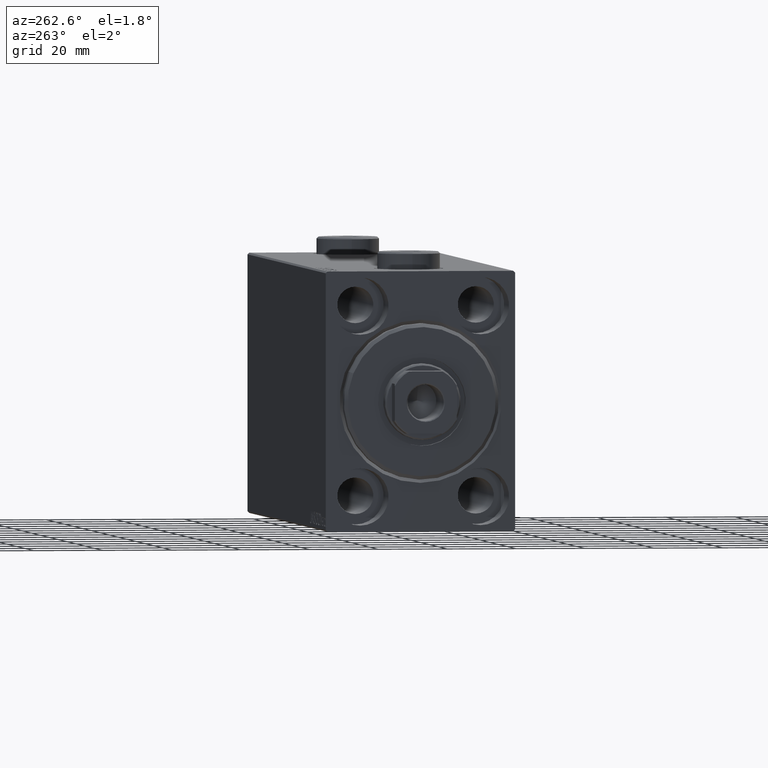
[diagram: clean part render]
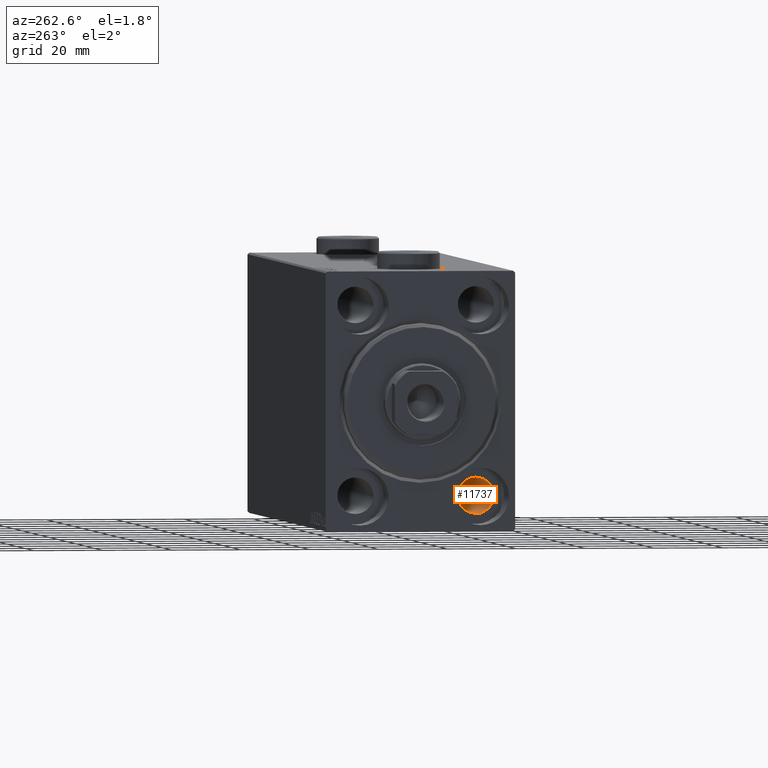
[diagram: same view with one face highlighted and labeled with its STEP entity id]
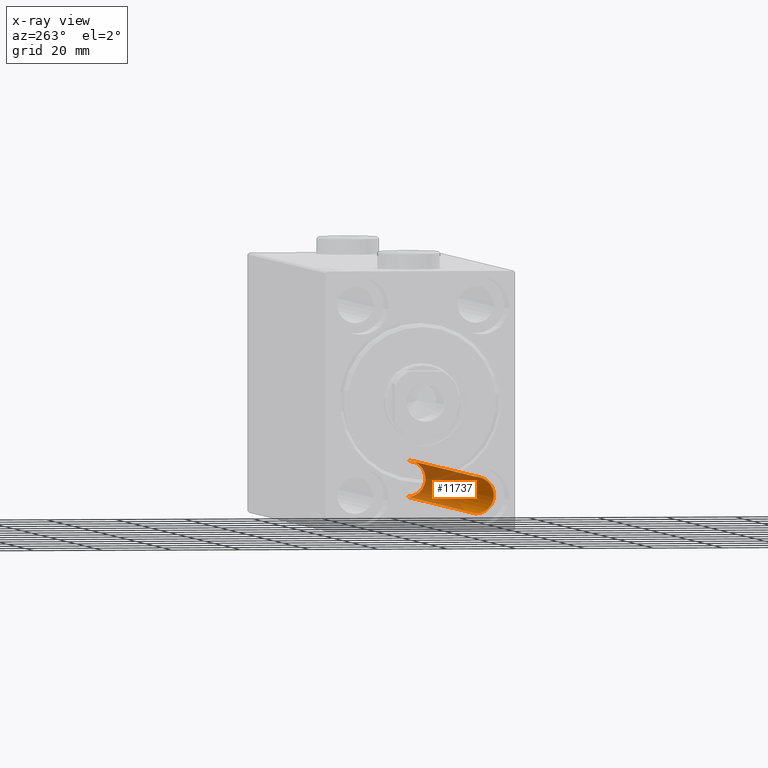
[diagram: x-ray of the same camera — body ghosted, the highlighted face saturated]
A machine part, auxiliary view. The second image highlights one B-rep face of the part: STEP entity #11737.
The next image is the same camera in x-ray: the body ghosted, the highlighted face saturated — about 59% of this face is hidden behind the body in this view.
In plain terms, the highlighted cylindrical surface (edge-blend (fillet) strip) has radius 5.25 mm, axis along (-1, -0, -0).
Its self-contained STEP definition (entity closure, byte-faithful):
#189 = ORIENTED_EDGE ( 'NONE', *, *, #37346, .F. ) ;
#518 = FACE_OUTER_BOUND ( 'NONE', #42583, .T. ) ;
#2521 = ORIENTED_EDGE ( 'NONE', *, *, #22757, .T. ) ;
#3391 = ORIENTED_EDGE ( 'NONE', *, *, #19325, .T. ) ;
#3734 = DIRECTION ( 'NONE',  ( -1.000000000000000000, -0.000000000000000000, -0.000000000000000000 ) ) ;
#5492 = CARTESIAN_POINT ( 'NONE',  ( 163.9999999999999716, -17.50000000000000355, -32.75000000000000000 ) ) ;
#8063 = CYLINDRICAL_SURFACE ( 'NONE', #42332, 5.250000000000000888 ) ;
#8445 = CARTESIAN_POINT ( 'NONE',  ( 163.9999999999999716, -17.50000000000000355, -27.50000000000000355 ) ) ;
#8541 = CARTESIAN_POINT ( 'NONE',  ( 175.0000000000000000, -17.50000000000000355, -22.25000000000000355 ) ) ;
#9661 = VERTEX_POINT ( 'NONE', #42334 ) ;
#10411 = CIRCLE ( 'NONE', #35939, 5.249999999999997335 ) ;
#11492 = LINE ( 'NONE', #38907, #20626 ) ;
#11737 = ADVANCED_FACE ( 'NONE', ( #518 ), #8063, .F. ) ;
#11756 = LINE ( 'NONE', #8541, #29172 ) ;
#13421 = AXIS2_PLACEMENT_3D ( 'NONE', #40342, #20010, #34380 ) ;
#17069 = CIRCLE ( 'NONE', #13421, 5.250000000000000888 ) ;
#18822 = DIRECTION ( 'NONE',  ( 0.000000000000000000, 0.000000000000000000, 1.000000000000000000 ) ) ;
#19203 = DIRECTION ( 'NONE',  ( 0.000000000000000000, 0.000000000000000000, -1.000000000000000000 ) ) ;
#19325 = EDGE_CURVE ( 'NONE', #37310, #9661, #11492, .T. ) ;
#20010 = DIRECTION ( 'NONE',  ( -1.000000000000000000, 0.000000000000000000, 0.000000000000000000 ) ) ;
#20626 = VECTOR ( 'NONE', #3734, 1000.000000000000000 ) ;
#21573 = DIRECTION ( 'NONE',  ( -1.000000000000000000, -0.000000000000000000, -0.000000000000000000 ) ) ;
#21934 = ORIENTED_EDGE ( 'NONE', *, *, #24786, .F. ) ;
#22248 = DIRECTION ( 'NONE',  ( -1.000000000000000000, -0.000000000000000000, -0.000000000000000000 ) ) ;
#22757 = EDGE_CURVE ( 'NONE', #9661, #41228, #17069, .T. ) ;
#24786 = EDGE_CURVE ( 'NONE', #44045, #41228, #11756, .T. ) ;
#25643 = CARTESIAN_POINT ( 'NONE',  ( 11.00000000000001066, -17.50000000000000355, -22.25000000000000355 ) ) ;
#26047 = DIRECTION ( 'NONE',  ( -1.000000000000000000, -0.000000000000000000, -0.000000000000000000 ) ) ;
#26834 = CARTESIAN_POINT ( 'NONE',  ( 163.9999999999999716, -17.50000000000000355, -22.25000000000000355 ) ) ;
#29172 = VECTOR ( 'NONE', #21573, 1000.000000000000000 ) ;
#34380 = DIRECTION ( 'NONE',  ( 0.000000000000000000, 0.000000000000000000, 1.000000000000000000 ) ) ;
#35939 = AXIS2_PLACEMENT_3D ( 'NONE', #8445, #26047, #19203 ) ;
#36178 = CARTESIAN_POINT ( 'NONE',  ( 175.0000000000000000, -17.50000000000000355, -27.50000000000000355 ) ) ;
#37310 = VERTEX_POINT ( 'NONE', #5492 ) ;
#37346 = EDGE_CURVE ( 'NONE', #37310, #44045, #10411, .T. ) ;
#38907 = CARTESIAN_POINT ( 'NONE',  ( 175.0000000000000000, -17.50000000000000355, -32.75000000000000000 ) ) ;
#40342 = CARTESIAN_POINT ( 'NONE',  ( 11.00000000000001066, -17.50000000000000355, -27.50000000000000355 ) ) ;
#41228 = VERTEX_POINT ( 'NONE', #25643 ) ;
#42332 = AXIS2_PLACEMENT_3D ( 'NONE', #36178, #22248, #18822 ) ;
#42334 = CARTESIAN_POINT ( 'NONE',  ( 11.00000000000001066, -17.50000000000000355, -32.75000000000000000 ) ) ;
#42583 = EDGE_LOOP ( 'NONE', ( #189, #3391, #2521, #21934 ) ) ;
#44045 = VERTEX_POINT ( 'NONE', #26834 ) ;